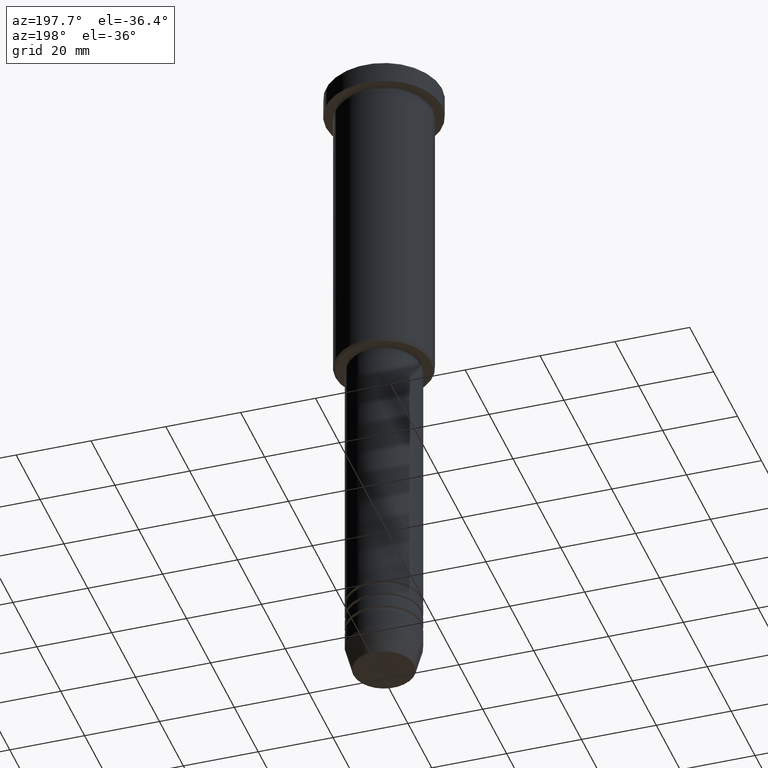
[diagram: clean part render]
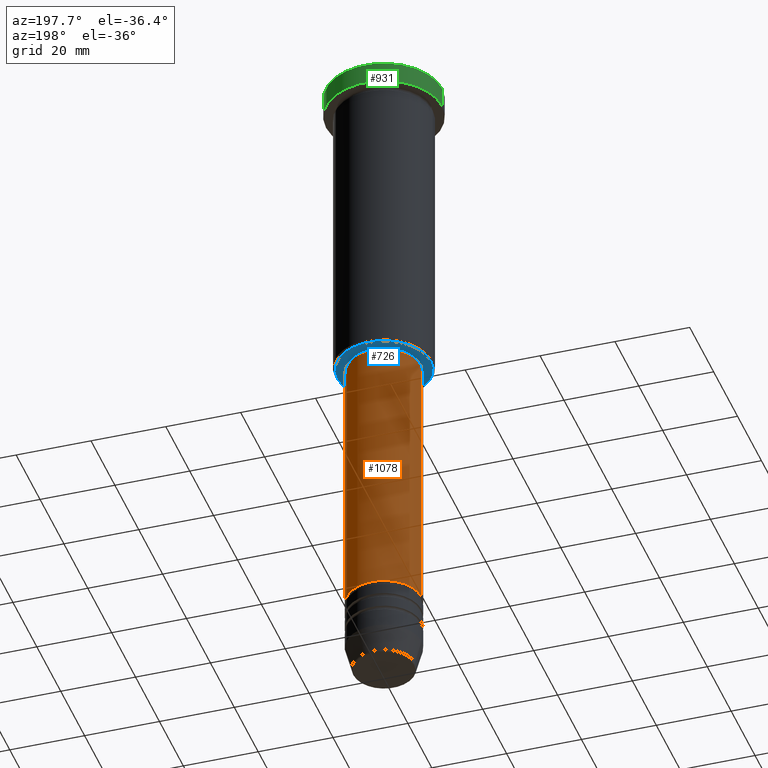
[diagram: same view with three faces highlighted in distinct colors, each labeled with its STEP entity id]
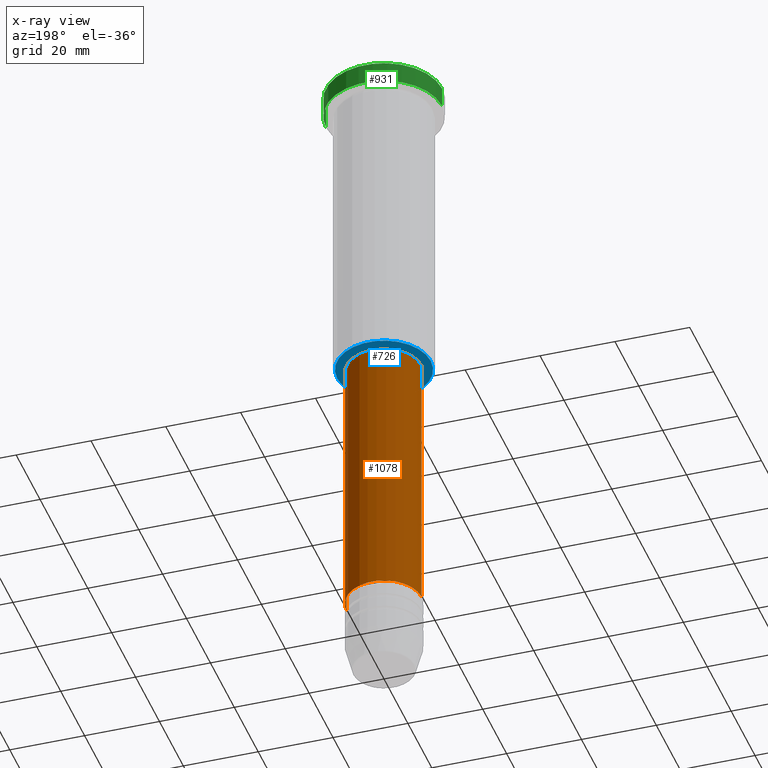
[diagram: x-ray of the same camera — body ghosted, the three highlighted faces saturated]
A machine part, auxiliary view with three faces highlighted in distinct colors.
The next image is the same camera in x-ray (body ghosted, the three faces saturated) — at least one of them is partly hidden behind the body in this view.
Their STEP definitions:

[orange] entity #1078 — the highlighted cylindrical surface (partial cylindrical patch) has radius 10 mm, axis along (-0, -0, 1).
#15 = AXIS2_PLACEMENT_3D ( 'NONE', #294, #197, #660 ) ;
#24 = EDGE_CURVE ( 'NONE', #400, #1063, #609, .T. ) ;
#61 = EDGE_LOOP ( 'NONE', ( #327, #813, #933, #1099 ) ) ;
#124 = CYLINDRICAL_SURFACE ( 'NONE', #15, 10.00000000000000000 ) ;
#137 = CIRCLE ( 'NONE', #806, 10.00000000000000178 ) ;
#145 = DIRECTION ( 'NONE',  ( 1.000000000000000000, 0.000000000000000000, 0.000000000000000000 ) ) ;
#146 = EDGE_CURVE ( 'NONE', #960, #1149, #792, .T. ) ;
#197 = DIRECTION ( 'NONE',  ( -0.000000000000000000, -0.000000000000000000, 1.000000000000000000 ) ) ;
#264 = CARTESIAN_POINT ( 'NONE',  ( 10.00000000000000178, 0.000000000000000000, -159.9999999999998579 ) ) ;
#294 = CARTESIAN_POINT ( 'NONE',  ( 0.000000000000000000, 0.000000000000000000, 0.000000000000000000 ) ) ;
#327 = ORIENTED_EDGE ( 'NONE', *, *, #915, .T. ) ;
#400 = VERTEX_POINT ( 'NONE', #402 ) ;
#402 = CARTESIAN_POINT ( 'NONE',  ( -10.00000000000000178, 1.224646799147353454E-15, -159.9999999999998579 ) ) ;
#420 = CARTESIAN_POINT ( 'NONE',  ( -10.00000000000000000, 1.224646799147353256E-15, 0.000000000000000000 ) ) ;
#430 = CARTESIAN_POINT ( 'NONE',  ( -9.999999999999998224, 1.224646799147353256E-15, -87.00000000000000000 ) ) ;
#446 = CIRCLE ( 'NONE', #957, 9.999999999999998224 ) ;
#449 = VECTOR ( 'NONE', #795, 1000.000000000000000 ) ;
#495 = EDGE_CURVE ( 'NONE', #1149, #1063, #446, .T. ) ;
#601 = VECTOR ( 'NONE', #857, 1000.000000000000000 ) ;
#609 = LINE ( 'NONE', #420, #449 ) ;
#660 = DIRECTION ( 'NONE',  ( 1.000000000000000000, 0.000000000000000000, 0.000000000000000000 ) ) ;
#692 = DIRECTION ( 'NONE',  ( 1.000000000000000000, 0.000000000000000000, 0.000000000000000000 ) ) ;
#697 = CARTESIAN_POINT ( 'NONE',  ( 0.000000000000000000, 0.000000000000000000, -159.9999999999998579 ) ) ;
#776 = CARTESIAN_POINT ( 'NONE',  ( 10.00000000000000000, 0.000000000000000000, 0.000000000000000000 ) ) ;
#792 = LINE ( 'NONE', #776, #601 ) ;
#795 = DIRECTION ( 'NONE',  ( -0.000000000000000000, -0.000000000000000000, 1.000000000000000000 ) ) ;
#806 = AXIS2_PLACEMENT_3D ( 'NONE', #697, #969, #692 ) ;
#813 = ORIENTED_EDGE ( 'NONE', *, *, #24, .T. ) ;
#857 = DIRECTION ( 'NONE',  ( -0.000000000000000000, -0.000000000000000000, 1.000000000000000000 ) ) ;
#880 = DIRECTION ( 'NONE',  ( -0.000000000000000000, -0.000000000000000000, 1.000000000000000000 ) ) ;
#895 = CARTESIAN_POINT ( 'NONE',  ( 0.000000000000000000, 0.000000000000000000, -87.00000000000000000 ) ) ;
#915 = EDGE_CURVE ( 'NONE', #960, #400, #137, .T. ) ;
#933 = ORIENTED_EDGE ( 'NONE', *, *, #495, .F. ) ;
#957 = AXIS2_PLACEMENT_3D ( 'NONE', #895, #880, #145 ) ;
#960 = VERTEX_POINT ( 'NONE', #264 ) ;
#969 = DIRECTION ( 'NONE',  ( -0.000000000000000000, -0.000000000000000000, 1.000000000000000000 ) ) ;
#1034 = CARTESIAN_POINT ( 'NONE',  ( 9.999999999999998224, 0.000000000000000000, -87.00000000000000000 ) ) ;
#1063 = VERTEX_POINT ( 'NONE', #430 ) ;
#1078 = ADVANCED_FACE ( 'NONE', ( #1117 ), #124, .T. ) ;
#1099 = ORIENTED_EDGE ( 'NONE', *, *, #146, .F. ) ;
#1117 = FACE_OUTER_BOUND ( 'NONE', #61, .T. ) ;
#1149 = VERTEX_POINT ( 'NONE', #1034 ) ;

[blue] entity #726 — the highlighted planar face has unit normal (0, 0, -1).
#26 = CARTESIAN_POINT ( 'NONE',  ( 0.000000000000000000, 0.000000000000000000, -86.00000000000000000 ) ) ;
#58 = CARTESIAN_POINT ( 'NONE',  ( 0.000000000000000000, 0.000000000000000000, -86.00000000000000000 ) ) ;
#92 = CARTESIAN_POINT ( 'NONE',  ( 0.000000000000000000, 13.00000000000000000, -86.00000000000000000 ) ) ;
#94 = CARTESIAN_POINT ( 'NONE',  ( -9.500000000000001776, 1.163414459189985682E-15, -86.00000000000000000 ) ) ;
#154 = DIRECTION ( 'NONE',  ( -0.000000000000000000, -0.000000000000000000, 1.000000000000000000 ) ) ;
#162 = CIRCLE ( 'NONE', #1102, 9.500000000000001776 ) ;
#174 = FACE_BOUND ( 'NONE', #213, .T. ) ;
#213 = EDGE_LOOP ( 'NONE', ( #904, #291 ) ) ;
#218 = VERTEX_POINT ( 'NONE', #439 ) ;
#260 = FACE_OUTER_BOUND ( 'NONE', #1121, .T. ) ;
#266 = EDGE_CURVE ( 'NONE', #862, #370, #975, .T. ) ;
#291 = ORIENTED_EDGE ( 'NONE', *, *, #330, .T. ) ;
#295 = DIRECTION ( 'NONE',  ( -1.000000000000000000, 0.000000000000000000, 0.000000000000000000 ) ) ;
#326 = DIRECTION ( 'NONE',  ( -1.000000000000000000, 0.000000000000000000, 0.000000000000000000 ) ) ;
#330 = EDGE_CURVE ( 'NONE', #370, #862, #162, .T. ) ;
#370 = VERTEX_POINT ( 'NONE', #94 ) ;
#377 = AXIS2_PLACEMENT_3D ( 'NONE', #58, #794, #326 ) ;
#439 = CARTESIAN_POINT ( 'NONE',  ( 12.49999999999998401, 0.000000000000000000, -86.00000000000000000 ) ) ;
#450 = DIRECTION ( 'NONE',  ( 0.000000000000000000, 0.000000000000000000, -1.000000000000000000 ) ) ;
#473 = AXIS2_PLACEMENT_3D ( 'NONE', #26, #771, #295 ) ;
#520 = DIRECTION ( 'NONE',  ( -0.000000000000000000, -0.000000000000000000, 1.000000000000000000 ) ) ;
#536 = CIRCLE ( 'NONE', #473, 12.49999999999998401 ) ;
#567 = DIRECTION ( 'NONE',  ( -1.000000000000000000, 0.000000000000000000, -0.000000000000000000 ) ) ;
#595 = ORIENTED_EDGE ( 'NONE', *, *, #919, .T. ) ;
#621 = CARTESIAN_POINT ( 'NONE',  ( -12.49999999999998401, 1.561424668912874322E-15, -86.00000000000000000 ) ) ;
#652 = CARTESIAN_POINT ( 'NONE',  ( 9.500000000000001776, 0.000000000000000000, -86.00000000000000000 ) ) ;
#711 = VERTEX_POINT ( 'NONE', #621 ) ;
#726 = ADVANCED_FACE ( 'NONE', ( #260, #174 ), #914, .T. ) ;
#750 = EDGE_CURVE ( 'NONE', #218, #711, #536, .T. ) ;
#771 = DIRECTION ( 'NONE',  ( 0.000000000000000000, 0.000000000000000000, -1.000000000000000000 ) ) ;
#774 = DIRECTION ( 'NONE',  ( 1.000000000000000000, 0.000000000000000000, 0.000000000000000000 ) ) ;
#794 = DIRECTION ( 'NONE',  ( 0.000000000000000000, 0.000000000000000000, -1.000000000000000000 ) ) ;
#837 = AXIS2_PLACEMENT_3D ( 'NONE', #1169, #520, #985 ) ;
#862 = VERTEX_POINT ( 'NONE', #652 ) ;
#883 = ORIENTED_EDGE ( 'NONE', *, *, #750, .T. ) ;
#903 = CIRCLE ( 'NONE', #377, 12.49999999999998401 ) ;
#904 = ORIENTED_EDGE ( 'NONE', *, *, #266, .T. ) ;
#914 = PLANE ( 'NONE',  #996 ) ;
#919 = EDGE_CURVE ( 'NONE', #711, #218, #903, .T. ) ;
#975 = CIRCLE ( 'NONE', #837, 9.500000000000001776 ) ;
#980 = CARTESIAN_POINT ( 'NONE',  ( 0.000000000000000000, 0.000000000000000000, -86.00000000000000000 ) ) ;
#985 = DIRECTION ( 'NONE',  ( 1.000000000000000000, 0.000000000000000000, 0.000000000000000000 ) ) ;
#996 = AXIS2_PLACEMENT_3D ( 'NONE', #92, #450, #567 ) ;
#1102 = AXIS2_PLACEMENT_3D ( 'NONE', #980, #154, #774 ) ;
#1121 = EDGE_LOOP ( 'NONE', ( #883, #595 ) ) ;
#1169 = CARTESIAN_POINT ( 'NONE',  ( 0.000000000000000000, 0.000000000000000000, -86.00000000000000000 ) ) ;

[green] entity #931 — the highlighted cylindrical surface (partial cylindrical patch) has radius 15.5 mm, axis along (-0, -0, 1).
#47 = VERTEX_POINT ( 'NONE', #867 ) ;
#62 = EDGE_CURVE ( 'NONE', #500, #257, #219, .T. ) ;
#63 = CYLINDRICAL_SURFACE ( 'NONE', #1110, 15.50000000000000000 ) ;
#70 = VERTEX_POINT ( 'NONE', #688 ) ;
#77 = VECTOR ( 'NONE', #533, 1000.000000000000000 ) ;
#116 = ORIENTED_EDGE ( 'NONE', *, *, #62, .T. ) ;
#140 = DIRECTION ( 'NONE',  ( 1.000000000000000000, 0.000000000000000000, 0.000000000000000000 ) ) ;
#150 = ORIENTED_EDGE ( 'NONE', *, *, #1025, .F. ) ;
#166 = VECTOR ( 'NONE', #431, 1000.000000000000000 ) ;
#187 = EDGE_CURVE ( 'NONE', #47, #70, #909, .T. ) ;
#215 = DIRECTION ( 'NONE',  ( 0.000000000000000000, 0.000000000000000000, -1.000000000000000000 ) ) ;
#219 = CIRCLE ( 'NONE', #1049, 15.50000000000000000 ) ;
#235 = AXIS2_PLACEMENT_3D ( 'NONE', #1048, #215, #955 ) ;
#257 = VERTEX_POINT ( 'NONE', #1173 ) ;
#279 = CARTESIAN_POINT ( 'NONE',  ( 15.50000000000000000, 0.000000000000000000, 0.000000000000000000 ) ) ;
#298 = ORIENTED_EDGE ( 'NONE', *, *, #187, .T. ) ;
#423 = DIRECTION ( 'NONE',  ( 1.000000000000000000, 0.000000000000000000, 0.000000000000000000 ) ) ;
#431 = DIRECTION ( 'NONE',  ( -0.000000000000000000, -0.000000000000000000, 1.000000000000000000 ) ) ;
#500 = VERTEX_POINT ( 'NONE', #610 ) ;
#509 = CARTESIAN_POINT ( 'NONE',  ( -15.50000000000000000, 1.898202538678397557E-15, 0.000000000000000000 ) ) ;
#524 = EDGE_CURVE ( 'NONE', #257, #47, #707, .T. ) ;
#533 = DIRECTION ( 'NONE',  ( -0.000000000000000000, -0.000000000000000000, 1.000000000000000000 ) ) ;
#597 = FACE_OUTER_BOUND ( 'NONE', #663, .T. ) ;
#603 = DIRECTION ( 'NONE',  ( -0.000000000000000000, -0.000000000000000000, 1.000000000000000000 ) ) ;
#610 = CARTESIAN_POINT ( 'NONE',  ( 15.50000000000000000, 0.000000000000000000, -5.999999999999995559 ) ) ;
#663 = EDGE_LOOP ( 'NONE', ( #116, #803, #298, #150 ) ) ;
#681 = CARTESIAN_POINT ( 'NONE',  ( 0.000000000000000000, 0.000000000000000000, -5.999999999999995559 ) ) ;
#688 = CARTESIAN_POINT ( 'NONE',  ( 15.50000000000000000, 0.000000000000000000, -0.5000000000000125455 ) ) ;
#707 = LINE ( 'NONE', #509, #166 ) ;
#798 = CARTESIAN_POINT ( 'NONE',  ( 0.000000000000000000, 0.000000000000000000, 0.000000000000000000 ) ) ;
#803 = ORIENTED_EDGE ( 'NONE', *, *, #524, .T. ) ;
#867 = CARTESIAN_POINT ( 'NONE',  ( -15.50000000000000000, 1.898202538678397557E-15, -0.5000000000000125455 ) ) ;
#909 = CIRCLE ( 'NONE', #235, 15.50000000000000000 ) ;
#931 = ADVANCED_FACE ( 'NONE', ( #597 ), #63, .T. ) ;
#955 = DIRECTION ( 'NONE',  ( 1.000000000000000000, 0.000000000000000000, 0.000000000000000000 ) ) ;
#966 = DIRECTION ( 'NONE',  ( -0.000000000000000000, -0.000000000000000000, 1.000000000000000000 ) ) ;
#1002 = LINE ( 'NONE', #279, #77 ) ;
#1025 = EDGE_CURVE ( 'NONE', #500, #70, #1002, .T. ) ;
#1048 = CARTESIAN_POINT ( 'NONE',  ( 0.000000000000000000, 0.000000000000000000, -0.5000000000000125455 ) ) ;
#1049 = AXIS2_PLACEMENT_3D ( 'NONE', #681, #966, #140 ) ;
#1110 = AXIS2_PLACEMENT_3D ( 'NONE', #798, #603, #423 ) ;
#1173 = CARTESIAN_POINT ( 'NONE',  ( -15.50000000000000000, 1.898202538678397557E-15, -5.999999999999995559 ) ) ;